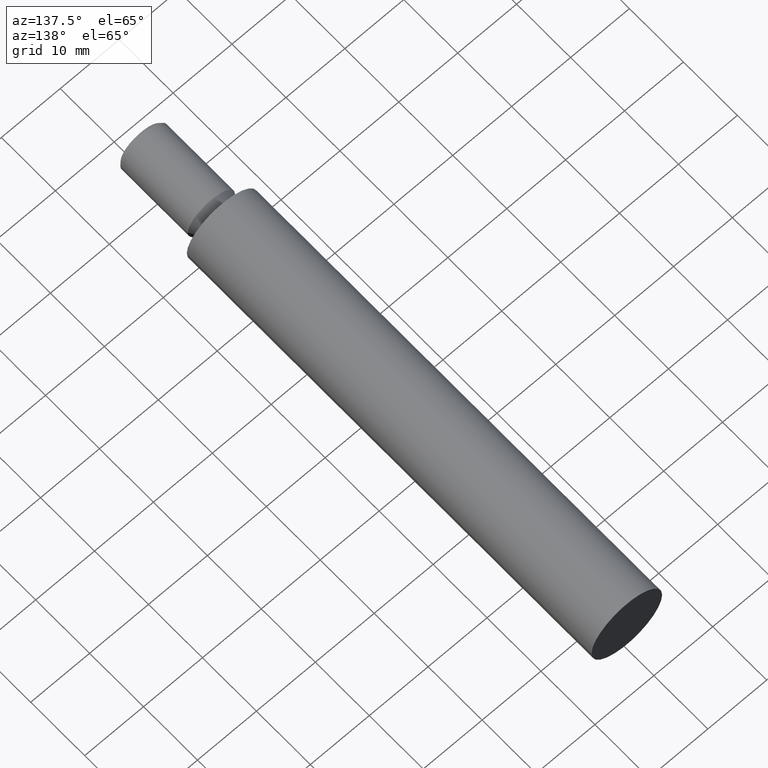
[diagram: clean part render]
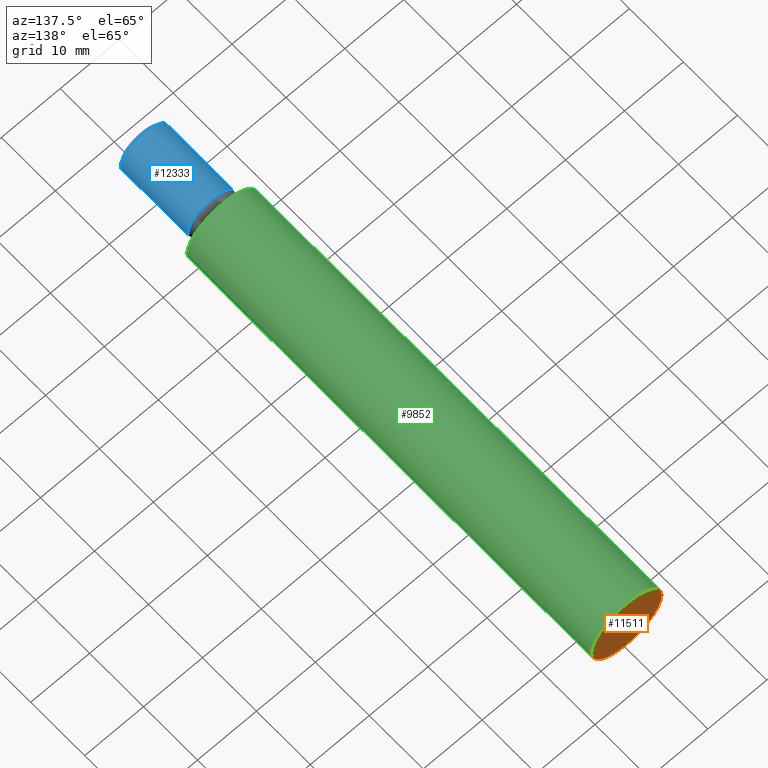
[diagram: same view with three faces highlighted in distinct colors, each labeled with its STEP entity id]
A machine part, auxiliary view with three faces highlighted in distinct colors.
Their STEP definitions:

[orange] entity #11511 — the highlighted planar face has unit normal (-0, 1, 0).
#545 = FACE_OUTER_BOUND ( 'NONE', #12813, .T. ) ;
#2125 = CARTESIAN_POINT ( 'NONE',  ( 5.999999999999996447, 75.00000000000000000, 0.000000000000000000 ) ) ;
#2836 = CIRCLE ( 'NONE', #5411, 5.999999999999996447 ) ;
#2925 = PLANE ( 'NONE',  #4195 ) ;
#3897 = CARTESIAN_POINT ( 'NONE',  ( 1.373780055810155475E-65, 75.00000000000000000, 0.000000000000000000 ) ) ;
#3988 = DIRECTION ( 'NONE',  ( -2.139922160430262325E-33, 1.000000000000000000, 0.000000000000000000 ) ) ;
#4195 = AXIS2_PLACEMENT_3D ( 'NONE', #3897, #3988, #6093 ) ;
#4633 = DIRECTION ( 'NONE',  ( 2.139922160430262325E-33, -1.000000000000000000, -0.000000000000000000 ) ) ;
#5411 = AXIS2_PLACEMENT_3D ( 'NONE', #11940, #4633, #11984 ) ;
#6093 = DIRECTION ( 'NONE',  ( -1.000000000000000000, -2.139922160430262325E-33, 0.000000000000000000 ) ) ;
#8926 = ORIENTED_EDGE ( 'NONE', *, *, #11270, .F. ) ;
#11270 = EDGE_CURVE ( 'NONE', #11999, #11999, #2836, .T. ) ;
#11511 = ADVANCED_FACE ( 'NONE', ( #545 ), #2925, .T. ) ;
#11940 = CARTESIAN_POINT ( 'NONE',  ( 0.000000000000000000, 75.00000000000000000, 0.000000000000000000 ) ) ;
#11984 = DIRECTION ( 'NONE',  ( 1.000000000000000000, 0.000000000000000000, 0.000000000000000000 ) ) ;
#11999 = VERTEX_POINT ( 'NONE', #2125 ) ;
#12813 = EDGE_LOOP ( 'NONE', ( #8926 ) ) ;

[blue] entity #12333 — the highlighted cylindrical surface (bore or boss wall) has radius 4 mm, axis along (0, -1, -0).
#492 = VERTEX_POINT ( 'NONE', #11607 ) ;
#819 = VERTEX_POINT ( 'NONE', #7389 ) ;
#1171 = CIRCLE ( 'NONE', #4230, 4.000000000000000000 ) ;
#1972 = AXIS2_PLACEMENT_3D ( 'NONE', #11304, #4958, #7077 ) ;
#2240 = DIRECTION ( 'NONE',  ( 1.000000000000000000, 0.000000000000000000, 0.000000000000000000 ) ) ;
#2839 = ORIENTED_EDGE ( 'NONE', *, *, #12510, .T. ) ;
#3692 = FACE_OUTER_BOUND ( 'NONE', #10295, .T. ) ;
#4230 = AXIS2_PLACEMENT_3D ( 'NONE', #9649, #6424, #12811 ) ;
#4958 = DIRECTION ( 'NONE',  ( 2.139922160430262325E-33, -1.000000000000000000, -0.000000000000000000 ) ) ;
#5518 = AXIS2_PLACEMENT_3D ( 'NONE', #11580, #12636, #2240 ) ;
#5841 = ORIENTED_EDGE ( 'NONE', *, *, #9225, .T. ) ;
#6424 = DIRECTION ( 'NONE',  ( 2.139922160430262325E-33, -1.000000000000000000, -0.000000000000000000 ) ) ;
#6655 = CYLINDRICAL_SURFACE ( 'NONE', #1972, 4.000000000000000888 ) ;
#7077 = DIRECTION ( 'NONE',  ( 1.000000000000000000, 0.000000000000000000, 0.000000000000000000 ) ) ;
#7328 = CIRCLE ( 'NONE', #5518, 4.000000000000000888 ) ;
#7389 = CARTESIAN_POINT ( 'NONE',  ( 4.000000000000000888, -14.49999999999998934, 0.000000000000000000 ) ) ;
#7976 = FACE_OUTER_BOUND ( 'NONE', #9297, .T. ) ;
#9225 = EDGE_CURVE ( 'NONE', #492, #492, #1171, .T. ) ;
#9297 = EDGE_LOOP ( 'NONE', ( #2839 ) ) ;
#9649 = CARTESIAN_POINT ( 'NONE',  ( 1.647740063531301761E-31, -2.000000000000000000, 0.000000000000000000 ) ) ;
#10295 = EDGE_LOOP ( 'NONE', ( #5841 ) ) ;
#11304 = CARTESIAN_POINT ( 'NONE',  ( 1.925929944387235853E-31, -15.00000000000000000, 0.000000000000000000 ) ) ;
#11580 = CARTESIAN_POINT ( 'NONE',  ( 1.915230333585084348E-31, -14.49999999999998934, 0.000000000000000000 ) ) ;
#11607 = CARTESIAN_POINT ( 'NONE',  ( 4.000000000000000000, -2.000000000000000000, 0.000000000000000000 ) ) ;
#12333 = ADVANCED_FACE ( 'NONE', ( #7976, #3692 ), #6655, .T. ) ;
#12510 = EDGE_CURVE ( 'NONE', #819, #819, #7328, .T. ) ;
#12636 = DIRECTION ( 'NONE',  ( -2.139922160430250693E-33, 1.000000000000000000, 0.000000000000000000 ) ) ;
#12811 = DIRECTION ( 'NONE',  ( 1.000000000000000000, 0.000000000000000000, 0.000000000000000000 ) ) ;

[green] entity #9852 — the highlighted cylindrical surface (bore or boss wall) has radius 6 mm, axis along (0, -1, -0).
#31 = CARTESIAN_POINT ( 'NONE',  ( 6.000000000000009770, 1.283953296258159242E-32, 0.000000000000000000 ) ) ;
#573 = DIRECTION ( 'NONE',  ( 1.000000000000000000, 0.000000000000000000, 0.000000000000000000 ) ) ;
#1293 = CIRCLE ( 'NONE', #11278, 6.000000000000009770 ) ;
#2125 = CARTESIAN_POINT ( 'NONE',  ( 5.999999999999996447, 75.00000000000000000, 0.000000000000000000 ) ) ;
#2836 = CIRCLE ( 'NONE', #5411, 5.999999999999996447 ) ;
#4144 = AXIS2_PLACEMENT_3D ( 'NONE', #12189, #5862, #573 ) ;
#4441 = FACE_OUTER_BOUND ( 'NONE', #7120, .T. ) ;
#4567 = ORIENTED_EDGE ( 'NONE', *, *, #11270, .T. ) ;
#4633 = DIRECTION ( 'NONE',  ( 2.139922160430262325E-33, -1.000000000000000000, -0.000000000000000000 ) ) ;
#5411 = AXIS2_PLACEMENT_3D ( 'NONE', #11940, #4633, #11984 ) ;
#5616 = DIRECTION ( 'NONE',  ( 2.139922160430262325E-33, -1.000000000000000000, -0.000000000000000000 ) ) ;
#5862 = DIRECTION ( 'NONE',  ( 2.139922160430262325E-33, -1.000000000000000000, -0.000000000000000000 ) ) ;
#6577 = CYLINDRICAL_SURFACE ( 'NONE', #4144, 6.000000000000003553 ) ;
#6903 = FACE_OUTER_BOUND ( 'NONE', #9884, .T. ) ;
#7120 = EDGE_LOOP ( 'NONE', ( #4567 ) ) ;
#9668 = CARTESIAN_POINT ( 'NONE',  ( 1.604941620322696398E-31, 0.000000000000000000, 0.000000000000000000 ) ) ;
#9760 = DIRECTION ( 'NONE',  ( 1.000000000000000000, 2.139922160430261983E-33, 0.000000000000000000 ) ) ;
#9852 = ADVANCED_FACE ( 'NONE', ( #4441, #6903 ), #6577, .T. ) ;
#9884 = EDGE_LOOP ( 'NONE', ( #10790 ) ) ;
#10144 = EDGE_CURVE ( 'NONE', #12668, #12668, #1293, .T. ) ;
#10790 = ORIENTED_EDGE ( 'NONE', *, *, #10144, .F. ) ;
#11270 = EDGE_CURVE ( 'NONE', #11999, #11999, #2836, .T. ) ;
#11278 = AXIS2_PLACEMENT_3D ( 'NONE', #9668, #5616, #9760 ) ;
#11940 = CARTESIAN_POINT ( 'NONE',  ( 0.000000000000000000, 75.00000000000000000, 0.000000000000000000 ) ) ;
#11984 = DIRECTION ( 'NONE',  ( 1.000000000000000000, 0.000000000000000000, 0.000000000000000000 ) ) ;
#11999 = VERTEX_POINT ( 'NONE', #2125 ) ;
#12189 = CARTESIAN_POINT ( 'NONE',  ( 1.925929944387235853E-31, -15.00000000000000000, 0.000000000000000000 ) ) ;
#12668 = VERTEX_POINT ( 'NONE', #31 ) ;